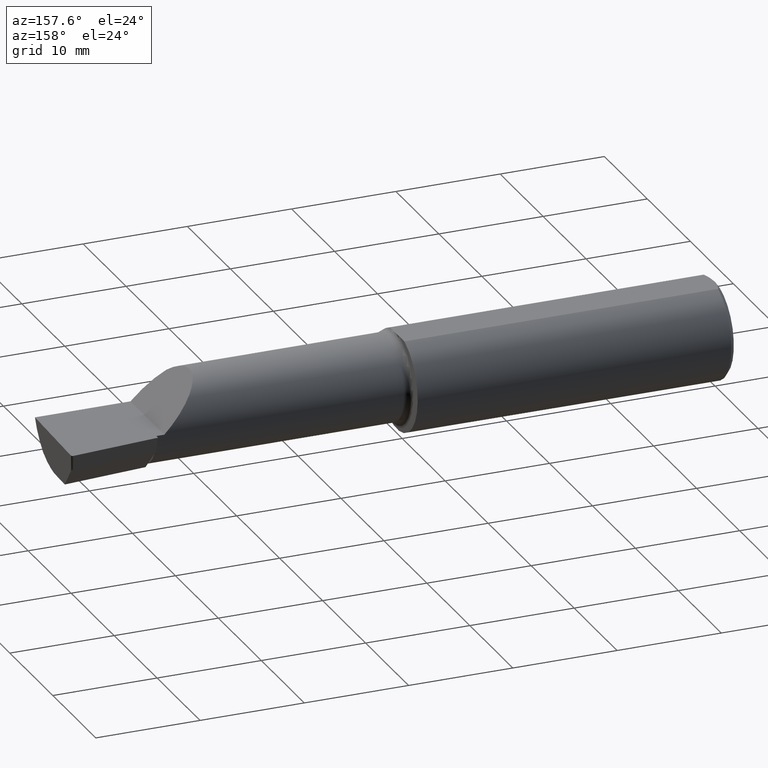
[diagram: clean part render]
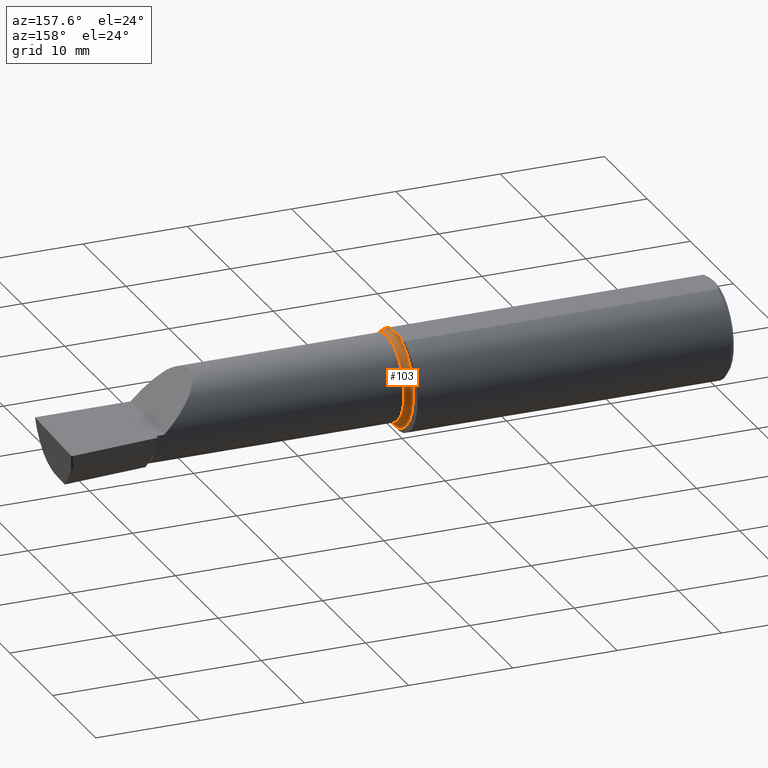
[diagram: same view with one face highlighted and labeled with its STEP entity id]
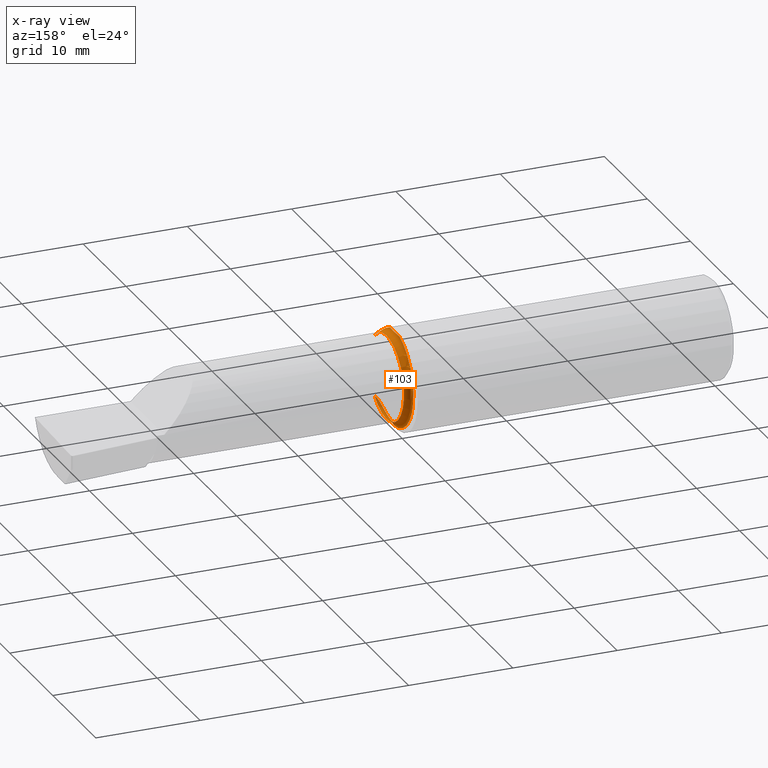
[diagram: x-ray of the same camera — body ghosted, the highlighted face saturated]
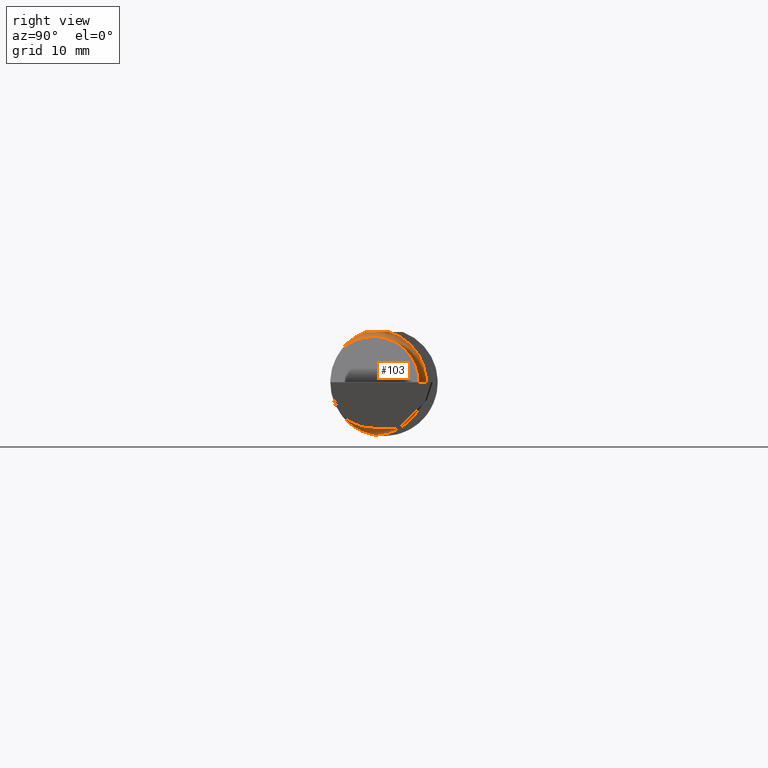
[diagram: same view with one face highlighted and labeled with its STEP entity id]
A machine part, auxiliary view. The second image highlights one B-rep face of the part: STEP entity #103.
The next image is the same camera in x-ray: the body ghosted, the highlighted face saturated — about 3% of this face is hidden behind the body in this view.
A second angle (right view) of the same face is appended — the face is thin or edge-on in the first view.
In plain terms, the highlighted toroidal blend (fillet) surface has major radius 4.7003 mm and minor (blend) radius 0.635 mm.
Its self-contained STEP definition (entity closure, byte-faithful):
#26 = EDGE_CURVE ( 'NONE', #183, #626, #426, .T. ) ;
#42 = AXIS2_PLACEMENT_3D ( 'NONE', #389, #230, #398 ) ;
#54 = CARTESIAN_POINT ( 'NONE',  ( 1.213610562096349099, -0.1338335382286872655, 0.1311728947444862903 ) ) ;
#59 = CARTESIAN_POINT ( 'NONE',  ( 1.201116380138691264, -0.06597272163553657975, 0.1753499999999999781 ) ) ;
#69 = CARTESIAN_POINT ( 'NONE',  ( 1.201049074448707232, -0.007621984361076244475, 0.1753499999999999781 ) ) ;
#83 = ORIENTED_EDGE ( 'NONE', *, *, #580, .T. ) ;
#85 = CARTESIAN_POINT ( 'NONE',  ( 1.225000000000000089, -0.1454917112299475290, 0.1180346748349042629 ) ) ;
#89 = CARTESIAN_POINT ( 'NONE',  ( 1.201116380138691264, -0.06597272163553657975, 0.1753499999999999781 ) ) ;
#96 = CARTESIAN_POINT ( 'NONE',  ( 1.199999999999999956, 0.02172596722253220328, 0.1753499999999999781 ) ) ;
#102 = CARTESIAN_POINT ( 'NONE',  ( 1.217060058352115837, -0.1401415676386940923, -0.1243666343873851554 ) ) ;
#103 = ADVANCED_FACE ( 'NONE', ( #485 ), #572, .F. ) ;
#110 = EDGE_CURVE ( 'NONE', #553, #614, #175, .T. ) ;
#116 = CARTESIAN_POINT ( 'NONE',  ( 1.201446793517542799, -0.01487494471388408138, 0.1753499999999999781 ) ) ;
#151 = CARTESIAN_POINT ( 'NONE',  ( 1.223475335450381118, -0.1454917112299472515, -0.1180346748349045405 ) ) ;
#159 = CARTESIAN_POINT ( 'NONE',  ( 1.199999999999999956, -0.03015080213903810827, -0.1849079544810676157 ) ) ;
#160 = CARTESIAN_POINT ( 'NONE',  ( 1.217580983404113137, -0.1407350872998852642, 0.1236837232298108324 ) ) ;
#170 = DIRECTION ( 'NONE',  ( -1.000000000000000000, 6.829619984160658046E-18, -0.000000000000000000 ) ) ;
#174 = CARTESIAN_POINT ( 'NONE',  ( 1.201790586316525022, -0.05136925160306193144, 0.1753500000000000614 ) ) ;
#175 = B_SPLINE_CURVE_WITH_KNOTS ( 'NONE', 3,
 ( #596, #543, #328, #69, #116, #236, #602, #174, #540, #59 ),
 .UNSPECIFIED., .F., .F.,
 ( 4, 2, 2, 2, 4 ),
 ( 0.01227444304810800316, 0.01283060897602173595, 0.01338677490393546873, 0.01394294083184920152, 0.01449910675976293431 ),
 .UNSPECIFIED. ) ;
#183 = VERTEX_POINT ( 'NONE', #662 ) ;
#197 = EDGE_CURVE ( 'NONE', #553, #626, #558, .T. ) ;
#201 = AXIS2_PLACEMENT_3D ( 'NONE', #466, #412, #250 ) ;
#209 = CARTESIAN_POINT ( 'NONE',  ( 1.199999999999999956, -0.04186526254461789970, -0.1829978128711759744 ) ) ;
#215 = CARTESIAN_POINT ( 'NONE',  ( 1.218558384071252165, -0.1420205060553831056, 0.1222022583412207680 ) ) ;
#230 = DIRECTION ( 'NONE',  ( -1.000000000000000000, 6.829619984160658046E-18, -0.000000000000000000 ) ) ;
#236 = CARTESIAN_POINT ( 'NONE',  ( 1.201936435452952034, -0.02946557294850779898, 0.1753499999999999781 ) ) ;
#250 = DIRECTION ( 'NONE',  ( 0.000000000000000000, -1.000000000000000000, 0.000000000000000000 ) ) ;
#254 = CARTESIAN_POINT ( 'NONE',  ( 1.205627379275792554, -0.1060494212093237437, -0.1548887329701210402 ) ) ;
#259 = CARTESIAN_POINT ( 'NONE',  ( 1.222867149423749522, -0.1451640434845494765, 0.1184394021563237587 ) ) ;
#268 = CARTESIAN_POINT ( 'NONE',  ( 1.220462485058697810, -0.1437494271365429566, 0.1201537477313800728 ) ) ;
#272 = CARTESIAN_POINT ( 'NONE',  ( 1.202180260693407776, -0.08231188685414682349, 0.1692026421515573920 ) ) ;
#299 = ORIENTED_EDGE ( 'NONE', *, *, #197, .F. ) ;
#304 = CARTESIAN_POINT ( 'NONE',  ( 1.199999999999999956, -0.03015080213903810827, -0.1849079544810676157 ) ) ;
#308 = CARTESIAN_POINT ( 'NONE',  ( 1.211427394884100117, -0.1284293148232741044, -0.1365241029388003235 ) ) ;
#328 = CARTESIAN_POINT ( 'NONE',  ( 1.200322286002908134, 0.007053356780979085430, 0.1753499999999999781 ) ) ;
#364 = CARTESIAN_POINT ( 'NONE',  ( 1.201697995486590953, -0.07541755249016975082, -0.1718998534213997120 ) ) ;
#373 = CARTESIAN_POINT ( 'NONE',  ( 1.210055759795568120, -0.1247930883238201061, 0.1399914093379786284 ) ) ;
#376 = CARTESIAN_POINT ( 'NONE',  ( 1.222144995725004124, -0.1448851833857937588, -0.1187833539262091731 ) ) ;
#389 = CARTESIAN_POINT ( 'NONE',  ( 1.199999999999999956, -0.03739999999999999575, 0.000000000000000000 ) ) ;
#398 = DIRECTION ( 'NONE',  ( 0.000000000000000000, -1.000000000000000000, 0.000000000000000000 ) ) ;
#401 = ORIENTED_EDGE ( 'NONE', *, *, #649, .T. ) ;
#411 = EDGE_LOOP ( 'NONE', ( #673, #299, #455, #401, #83 ) ) ;
#412 = DIRECTION ( 'NONE',  ( -1.000000000000000000, 6.829619984160658046E-18, -0.000000000000000000 ) ) ;
#418 = CARTESIAN_POINT ( 'NONE',  ( 1.215943198097122480, -0.1383011673991935420, -0.1264147259943147195 ) ) ;
#426 = B_SPLINE_CURVE_WITH_KNOTS ( 'NONE', 3,
 ( #482, #151, #376, #634, #593, #102, #418, #695, #308, #518, #254, #689, #364, #636, #209, #159 ),
 .UNSPECIFIED., .F., .F.,
 ( 4, 2, 2, 2, 2, 2, 2, 4 ),
 ( 1.966851289154467447E-07, 0.0001144729266691544130, 0.0002287491682093933964, 0.0004573016512898654272, 0.0009144066174508130125, 0.001828616549772710568, 0.002742826482094608016, 0.003657036414416505680 ),
 .UNSPECIFIED. ) ;
#427 = CARTESIAN_POINT ( 'NONE',  ( 1.223888626799697565, -0.1454917112299471404, 0.1180346748349046376 ) ) ;
#455 = ORIENTED_EDGE ( 'NONE', *, *, #110, .T. ) ;
#466 = CARTESIAN_POINT ( 'NONE',  ( 1.225000000000000089, -0.03739999999999999575, 0.000000000000000000 ) ) ;
#480 = AXIS2_PLACEMENT_3D ( 'NONE', #706, #170, #607 ) ;
#482 = CARTESIAN_POINT ( 'NONE',  ( 1.225000000000000089, -0.1454917112299472237, -0.1180346748349045127 ) ) ;
#485 = FACE_OUTER_BOUND ( 'NONE', #411, .T. ) ;
#518 = CARTESIAN_POINT ( 'NONE',  ( 1.207485333659844340, -0.1155414972264653256, -0.1479248906558520704 ) ) ;
#521 = CIRCLE ( 'NONE', #201, 0.1600499999999998313 ) ;
#530 = CARTESIAN_POINT ( 'NONE',  ( 1.203931069367344620, -0.09745462642916720430, 0.1609342754328615677 ) ) ;
#540 = CARTESIAN_POINT ( 'NONE',  ( 1.201479449616799755, -0.05867400124853454357, 0.1753500000000000059 ) ) ;
#541 = VERTEX_POINT ( 'NONE', #85 ) ;
#543 = CARTESIAN_POINT ( 'NONE',  ( 1.199999999999999956, 0.01439074984011788627, 0.1753500000000000614 ) ) ;
#553 = VERTEX_POINT ( 'NONE', #96 ) ;
#558 = CIRCLE ( 'NONE', #42, 0.1850499999999998535 ) ;
#572 = TOROIDAL_SURFACE ( 'NONE', #480, 0.1850499999999998535, 0.02500000000000001527 ) ;
#580 = EDGE_CURVE ( 'NONE', #541, #183, #521, .T. ) ;
#581 = CARTESIAN_POINT ( 'NONE',  ( 1.201116380138691264, -0.06597272163553657975, 0.1753499999999999781 ) ) ;
#583 = CARTESIAN_POINT ( 'NONE',  ( 1.221175406146075115, -0.1442942897112284573, 0.1194974872566935548 ) ) ;
#587 = CARTESIAN_POINT ( 'NONE',  ( 1.208327409769773375, -0.1182546610979339080, 0.1455684145307626631 ) ) ;
#593 = CARTESIAN_POINT ( 'NONE',  ( 1.219258671360876178, -0.1426776373316543667, -0.1214281201482010908 ) ) ;
#596 = CARTESIAN_POINT ( 'NONE',  ( 1.199999999999999956, 0.02172596722253220328, 0.1753499999999999781 ) ) ;
#602 = CARTESIAN_POINT ( 'NONE',  ( 1.202020598872754586, -0.03676412395315003384, 0.1753500000000000059 ) ) ;
#607 = DIRECTION ( 'NONE',  ( -6.829619984160658046E-18, -1.000000000000000000, 0.000000000000000000 ) ) ;
#614 = VERTEX_POINT ( 'NONE', #581 ) ;
#626 = VERTEX_POINT ( 'NONE', #304 ) ;
#634 = CARTESIAN_POINT ( 'NONE',  ( 1.220088327122037519, -0.1434986192849198594, -0.1204547541528178389 ) ) ;
#636 = CARTESIAN_POINT ( 'NONE',  ( 1.200336700870086037, -0.05340758954924541141, -0.1799583179751510220 ) ) ;
#649 = EDGE_CURVE ( 'NONE', #614, #541, #660, .T. ) ;
#654 = CARTESIAN_POINT ( 'NONE',  ( 1.225000000000000089, -0.1454917112299475290, 0.1180346748349042629 ) ) ;
#660 = B_SPLINE_CURVE_WITH_KNOTS ( 'NONE', 3,
 ( #89, #272, #530, #587, #373, #54, #700, #160, #215, #268, #583, #259, #427, #654 ),
 .UNSPECIFIED., .F., .F.,
 ( 4, 2, 2, 2, 2, 2, 4 ),
 ( 5.633523616107936189E-07, 0.001319819381107013856, 0.001979447395479715446, 0.002309261402666068410, 0.002474168406259244241, 0.002556621908055830422, 0.002639075409852416169 ),
 .UNSPECIFIED. ) ;
#662 = CARTESIAN_POINT ( 'NONE',  ( 1.225000000000000089, -0.1454917112299472237, -0.1180346748349045127 ) ) ;
#673 = ORIENTED_EDGE ( 'NONE', *, *, #26, .T. ) ;
#689 = CARTESIAN_POINT ( 'NONE',  ( 1.202713316750944728, -0.08594842947873615469, -0.1668827936309215387 ) ) ;
#695 = CARTESIAN_POINT ( 'NONE',  ( 1.212916881138097480, -0.1325294370633285645, -0.1325423110575142394 ) ) ;
#700 = CARTESIAN_POINT ( 'NONE',  ( 1.214940665466612391, -0.1367234982206464167, 0.1281512008975642103 ) ) ;
#706 = CARTESIAN_POINT ( 'NONE',  ( 1.225000000000000089, -0.03739999999999997493, 0.000000000000000000 ) ) ;